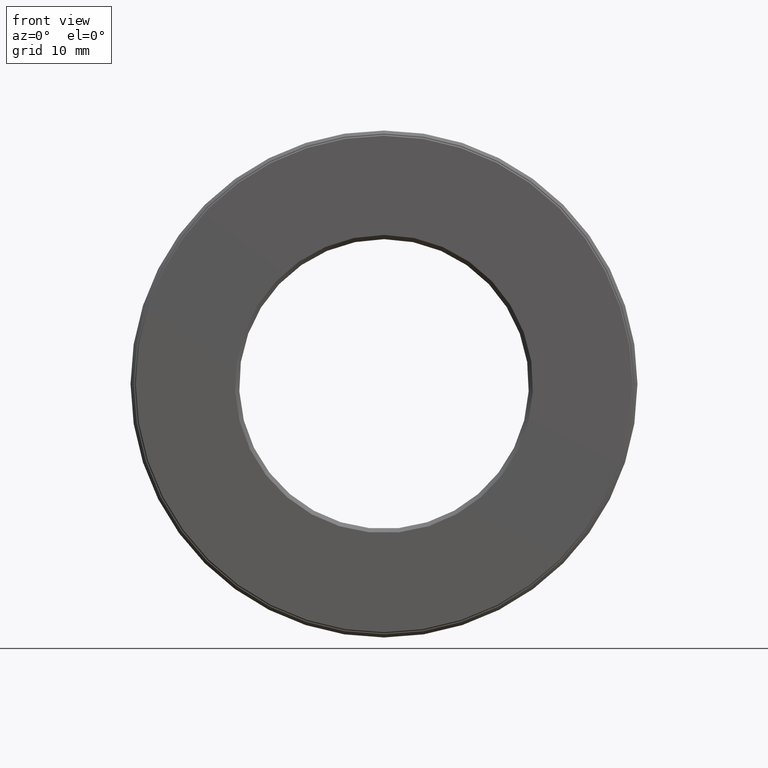
[diagram: clean part render]
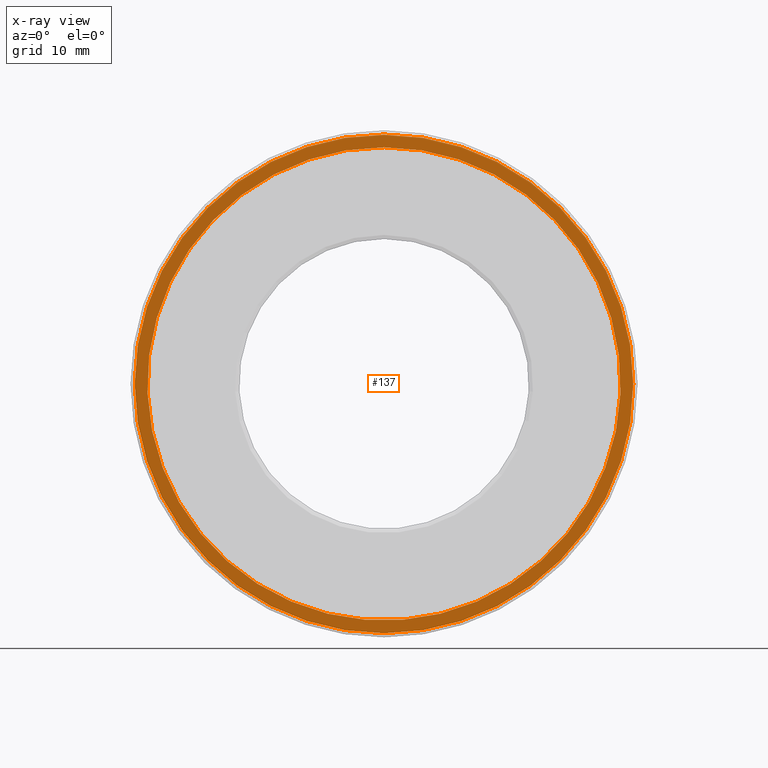
[diagram: x-ray — body ghosted, one internal face saturated and labeled with its STEP entity id]
A machine part, front view, then the same camera in x-ray: the body is ghosted and one INTERNAL B-rep face — a face not visible from any outside direction — is saturated and labeled: STEP entity #137.
In plain terms, the highlighted planar face has unit normal (-0, 1, 0).
Its self-contained STEP definition (entity closure, byte-faithful):
#45 = EDGE_CURVE ( 'NONE', #464, #464, #562, .T. ) ;
#67 = AXIS2_PLACEMENT_3D ( 'NONE', #550, #284, #319 ) ;
#72 = DIRECTION ( 'NONE',  ( 0.0000000000000000000, 0.0000000000000000000, 1.000000000000000000 ) ) ;
#80 = PLANE ( 'NONE',  #578 ) ;
#98 = FACE_OUTER_BOUND ( 'NONE', #118, .T. ) ;
#109 = DIRECTION ( 'NONE',  ( 0.0000000000000000000, 0.0000000000000000000, 1.000000000000000000 ) ) ;
#118 = EDGE_LOOP ( 'NONE', ( #539 ) ) ;
#137 = ADVANCED_FACE ( 'NONE', ( #98, #527 ), #80, .F. ) ;
#141 = CARTESIAN_POINT ( 'NONE',  ( 0.0000000000000000000, 0.6524999999999997500, 1.123125000000000200 ) ) ;
#214 = EDGE_CURVE ( 'NONE', #470, #470, #355, .T. ) ;
#258 = CARTESIAN_POINT ( 'NONE',  ( 0.0000000000000000000, 0.6524999999999997500, 0.0000000000000000000 ) ) ;
#273 = CARTESIAN_POINT ( 'NONE',  ( 0.0000000000000000000, 0.6524999999999997500, 0.0000000000000000000 ) ) ;
#284 = DIRECTION ( 'NONE',  ( -0.0000000000000000000, 1.000000000000000000, -0.0000000000000000000 ) ) ;
#296 = EDGE_LOOP ( 'NONE', ( #465 ) ) ;
#319 = DIRECTION ( 'NONE',  ( 0.0000000000000000000, 0.0000000000000000000, 1.000000000000000000 ) ) ;
#355 = CIRCLE ( 'NONE', #569, 1.183125000000000000 ) ;
#457 = DIRECTION ( 'NONE',  ( -0.0000000000000000000, 1.000000000000000000, 0.0000000000000000000 ) ) ;
#464 = VERTEX_POINT ( 'NONE', #141 ) ;
#465 = ORIENTED_EDGE ( 'NONE', *, *, #45, .T. ) ;
#467 = CARTESIAN_POINT ( 'NONE',  ( 0.0000000000000000000, 0.6524999999999997500, 1.183125000000000000 ) ) ;
#470 = VERTEX_POINT ( 'NONE', #467 ) ;
#527 = FACE_BOUND ( 'NONE', #296, .T. ) ;
#539 = ORIENTED_EDGE ( 'NONE', *, *, #214, .F. ) ;
#550 = CARTESIAN_POINT ( 'NONE',  ( 0.0000000000000000000, 0.6524999999999997500, 0.0000000000000000000 ) ) ;
#562 = CIRCLE ( 'NONE', #67, 1.123125000000000200 ) ;
#569 = AXIS2_PLACEMENT_3D ( 'NONE', #258, #580, #109 ) ;
#578 = AXIS2_PLACEMENT_3D ( 'NONE', #273, #457, #72 ) ;
#580 = DIRECTION ( 'NONE',  ( -0.0000000000000000000, 1.000000000000000000, -0.0000000000000000000 ) ) ;